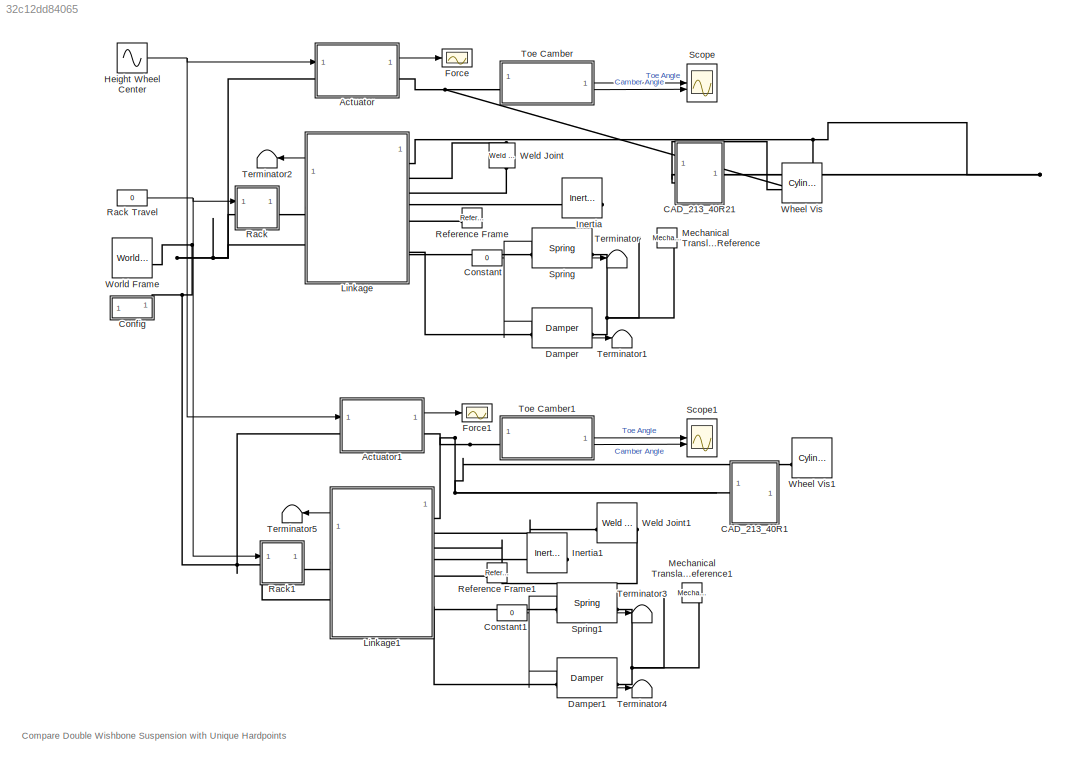
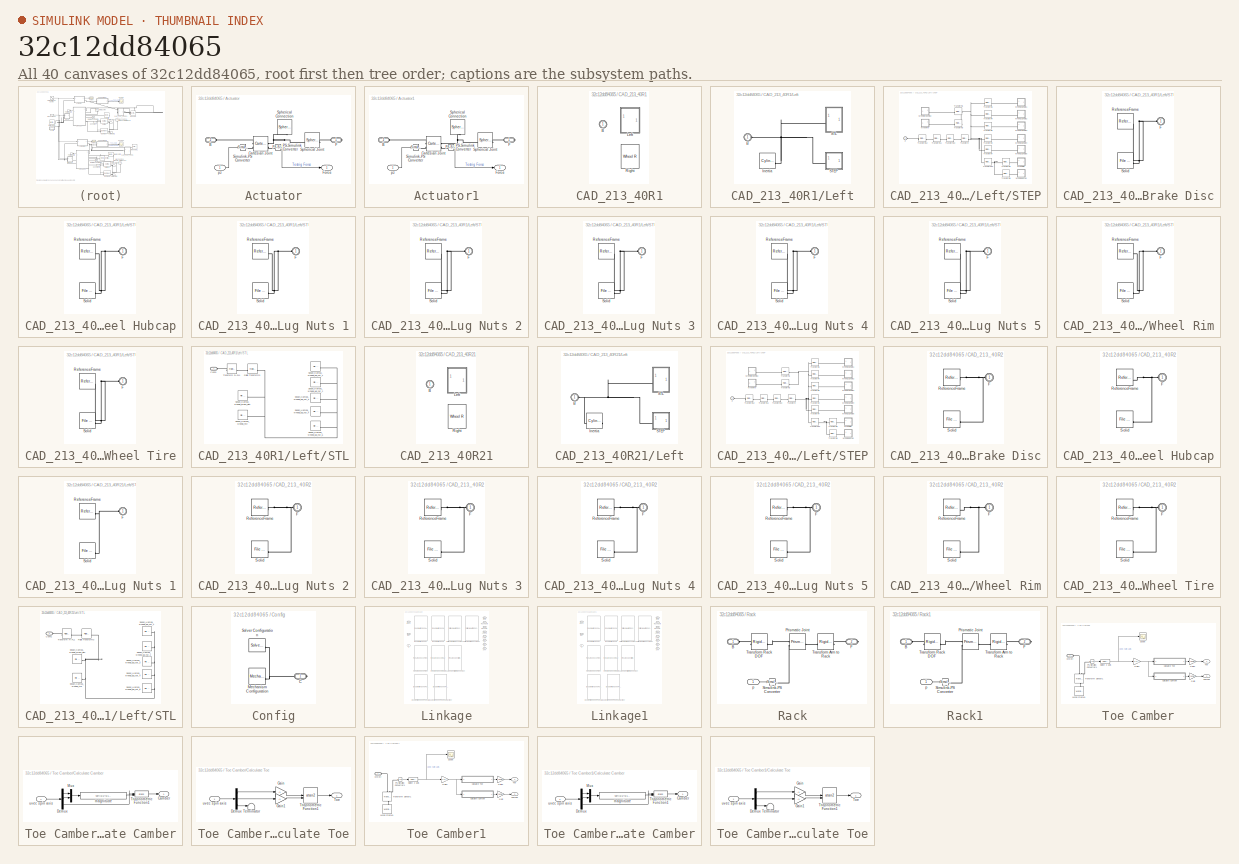
[diagram: thumbnail index - all 40 canvases of the model, root first then tree order]
MODEL slx_32c12dd84065
KIND model
CONFIG AbsTol = 1e-3
CONFIG EnableMultiTasking = on
CONFIG PostLoadFcn = testrig_quarter_car_compare_hps
CONFIG SolverName = ode23t
CONFIG StopTime = 7
BLOCK [SubSystem] Actuator
BLOCK [PMIOPort] Actuator/B
  Port = 2
  Side = Left
BLOCK [Reference] Actuator/Cartesian Joint  REF=sm_lib/Joints/Cartesian
Joint
  SourceBlock = sm_lib/Joints/Cartesian\nJoint
  SourceType = Cartesian\nJoint
BLOCK [PMIOPort] Actuator/F
  Side = Right
BLOCK [Outport] Actuator/Force
  VectorParamsAs1DForOutWhenUnconnected = off
BLOCK [Reference] Actuator/PS-Simulink Converter  REF=nesl_utility/PS-Simulink
Converter
  SourceBlock = nesl_utility/PS-Simulink\nConverter
  SourceType = PS-Simulink\nConverter
BLOCK [Reference] Actuator/Simulink-PS Converter  REF=nesl_utility/Simulink-PS
Converter
  SourceBlock = nesl_utility/Simulink-PS\nConverter
  SourceType = Simulink-PS\nConverter
BLOCK [Reference] Actuator/Spherical Connection  REF=sm_lib/Body Elements/Spherical Solid
  NameLocation = left
  SourceBlock = sm_lib/Body Elements/Spherical Solid
  SourceType = Spherical Solid
BLOCK [Reference] Actuator/Spherical Joint  REF=sm_lib/Joints/Spherical
Joint
  SourceBlock = sm_lib/Joints/Spherical\nJoint
  SourceType = Spherical\nJoint
BLOCK [Inport] Actuator/pz
BLOCK [SubSystem] Actuator1
BLOCK [PMIOPort] Actuator1/B
  Port = 2
  Side = Left
BLOCK [Reference] Actuator1/Cartesian Joint  REF=sm_lib/Joints/Cartesian
Joint
  SourceBlock = sm_lib/Joints/Cartesian\nJoint
  SourceType = Cartesian\nJoint
BLOCK [PMIOPort] Actuator1/F
  Side = Right
BLOCK [Outport] Actuator1/Force
  VectorParamsAs1DForOutWhenUnconnected = off
BLOCK [Reference] Actuator1/PS-Simulink Converter  REF=nesl_utility/PS-Simulink
Converter
  SourceBlock = nesl_utility/PS-Simulink\nConverter
  SourceType = PS-Simulink\nConverter
BLOCK [Reference] Actuator1/Simulink-PS Converter  REF=nesl_utility/Simulink-PS
Converter
  SourceBlock = nesl_utility/Simulink-PS\nConverter
  SourceType = Simulink-PS\nConverter
BLOCK [Reference] Actuator1/Spherical Connection  REF=sm_lib/Body Elements/Spherical Solid
  NameLocation = left
  SourceBlock = sm_lib/Body Elements/Spherical Solid
  SourceType = Spherical Solid
BLOCK [Reference] Actuator1/Spherical Joint  REF=sm_lib/Joints/Spherical
Joint
  SourceBlock = sm_lib/Joints/Spherical\nJoint
  SourceType = Spherical\nJoint
BLOCK [Inport] Actuator1/pz
BLOCK [SubSystem] CAD_213_40R1
  AttributesFormatString = %<LabelModeActiveChoice>
  LabelModeActiveChoice = Left
  Variant = on
  VariantControl = CAD_213_40R21
  VariantControlMode = label
BLOCK [PMIOPort] CAD_213_40R1/B
  Side = Left
BLOCK [SubSystem] CAD_213_40R1/Left
  VariantControl = Left
BLOCK [PMIOPort] CAD_213_40R1/Left/B
  Side = Left
BLOCK [Reference] CAD_213_40R1/Left/Inertia  REF=sm_lib/Body Elements/Cylindrical Solid
  SourceBlock = sm_lib/Body Elements/Cylindrical Solid
  SourceType = Cylindrical Solid
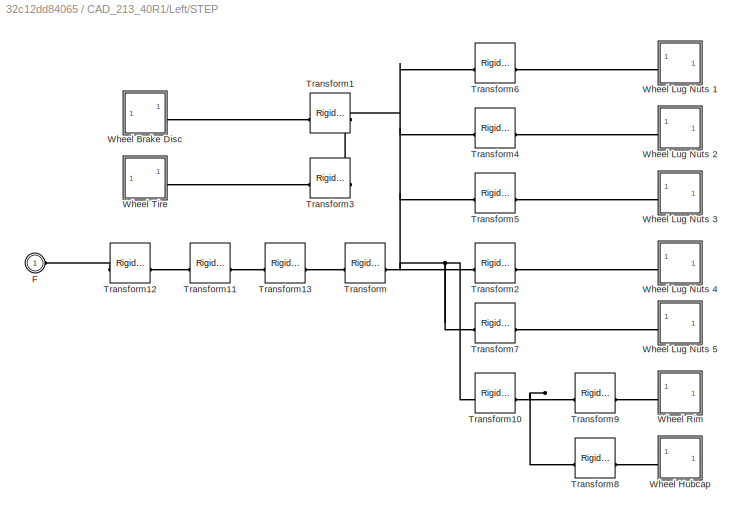
BLOCK [SubSystem] CAD_213_40R1/Left/STEP
BLOCK [PMIOPort] CAD_213_40R1/Left/STEP/F
  Side = Left
BLOCK [Reference] CAD_213_40R1/Left/STEP/Transform  REF=sm_lib/Frames and
Transforms/Rigid
Transform
  SourceBlock = sm_lib/Frames and\nTransforms/Rigid\nTransform
  SourceType = Rigid\nTransform
BLOCK [Reference] CAD_213_40R1/Left/STEP/Transform1  REF=sm_lib/Frames and
Transforms/Rigid
Transform
  Commented = on
  SourceBlock = sm_lib/Frames and\nTransforms/Rigid\nTransform
  SourceType = Rigid\nTransform
BLOCK [Reference] CAD_213_40R1/Left/STEP/Transform10  REF=sm_lib/Frames and
Transforms/Rigid
Transform
  SourceBlock = sm_lib/Frames and\nTransforms/Rigid\nTransform
  SourceType = Rigid\nTransform
BLOCK [Reference] CAD_213_40R1/Left/STEP/Transform11  REF=sm_lib/Frames and
Transforms/Rigid
Transform
  SourceBlock = sm_lib/Frames and\nTransforms/Rigid\nTransform
  SourceType = Rigid\nTransform
BLOCK [Reference] CAD_213_40R1/Left/STEP/Transform12  REF=sm_lib/Frames and
Transforms/Rigid
Transform
  SourceBlock = sm_lib/Frames and\nTransforms/Rigid\nTransform
  SourceType = Rigid\nTransform
BLOCK [Reference] CAD_213_40R1/Left/STEP/Transform13  REF=sm_lib/Frames and
Transforms/Rigid
Transform
  SourceBlock = sm_lib/Frames and\nTransforms/Rigid\nTransform
  SourceType = Rigid\nTransform
BLOCK [Reference] CAD_213_40R1/Left/STEP/Transform2  REF=sm_lib/Frames and
Transforms/Rigid
Transform
  SourceBlock = sm_lib/Frames and\nTransforms/Rigid\nTransform
  SourceType = Rigid\nTransform
BLOCK [Reference] CAD_213_40R1/Left/STEP/Transform3  REF=sm_lib/Frames and
Transforms/Rigid
Transform
  Commented = on
  SourceBlock = sm_lib/Frames and\nTransforms/Rigid\nTransform
  SourceType = Rigid\nTransform
BLOCK [Reference] CAD_213_40R1/Left/STEP/Transform4  REF=sm_lib/Frames and
Transforms/Rigid
Transform
  SourceBlock = sm_lib/Frames and\nTransforms/Rigid\nTransform
  SourceType = Rigid\nTransform
BLOCK [Reference] CAD_213_40R1/Left/STEP/Transform5  REF=sm_lib/Frames and
Transforms/Rigid
Transform
  SourceBlock = sm_lib/Frames and\nTransforms/Rigid\nTransform
  SourceType = Rigid\nTransform
BLOCK [Reference] CAD_213_40R1/Left/STEP/Transform6  REF=sm_lib/Frames and
Transforms/Rigid
Transform
  SourceBlock = sm_lib/Frames and\nTransforms/Rigid\nTransform
  SourceType = Rigid\nTransform
BLOCK [Reference] CAD_213_40R1/Left/STEP/Transform7  REF=sm_lib/Frames and
Transforms/Rigid
Transform
  SourceBlock = sm_lib/Frames and\nTransforms/Rigid\nTransform
  SourceType = Rigid\nTransform
BLOCK [Reference] CAD_213_40R1/Left/STEP/Transform8  REF=sm_lib/Frames and
Transforms/Rigid
Transform
  SourceBlock = sm_lib/Frames and\nTransforms/Rigid\nTransform
  SourceType = Rigid\nTransform
BLOCK [Reference] CAD_213_40R1/Left/STEP/Transform9  REF=sm_lib/Frames and
Transforms/Rigid
Transform
  SourceBlock = sm_lib/Frames and\nTransforms/Rigid\nTransform
  SourceType = Rigid\nTransform
BLOCK [SubSystem] CAD_213_40R1/Left/STEP/Wheel Brake Disc
  Commented = on
BLOCK [PMIOPort] CAD_213_40R1/Left/STEP/Wheel Brake Disc/F
  Side = Left
BLOCK [Reference] CAD_213_40R1/Left/STEP/Wheel Brake Disc/ReferenceFrame  REF=sm_lib/Frames and
Transforms/Reference
Frame
  SourceBlock = sm_lib/Frames and\nTransforms/Reference\nFrame
  SourceType = Reference\nFrame
BLOCK [Reference] CAD_213_40R1/Left/STEP/Wheel Brake Disc/Solid  REF=sm_lib/Body Elements/File Solid
  SourceBlock = sm_lib/Body Elements/File Solid
  SourceType = File Solid
BLOCK [SubSystem] CAD_213_40R1/Left/STEP/Wheel Hubcap
BLOCK [PMIOPort] CAD_213_40R1/Left/STEP/Wheel Hubcap/F
  Side = Left
BLOCK [Reference] CAD_213_40R1/Left/STEP/Wheel Hubcap/ReferenceFrame  REF=sm_lib/Frames and
Transforms/Reference
Frame
  SourceBlock = sm_lib/Frames and\nTransforms/Reference\nFrame
  SourceType = Reference\nFrame
BLOCK [Reference] CAD_213_40R1/Left/STEP/Wheel Hubcap/Solid  REF=sm_lib/Body Elements/File Solid
  SourceBlock = sm_lib/Body Elements/File Solid
  SourceType = File Solid
BLOCK [SubSystem] CAD_213_40R1/Left/STEP/Wheel Lug Nuts 1
BLOCK [PMIOPort] CAD_213_40R1/Left/STEP/Wheel Lug Nuts 1/F
  Side = Left
BLOCK [Reference] CAD_213_40R1/Left/STEP/Wheel Lug Nuts 1/ReferenceFrame  REF=sm_lib/Frames and
Transforms/Reference
Frame
  SourceBlock = sm_lib/Frames and\nTransforms/Reference\nFrame
  SourceType = Reference\nFrame
BLOCK [Reference] CAD_213_40R1/Left/STEP/Wheel Lug Nuts 1/Solid  REF=sm_lib/Body Elements/File Solid
  SourceBlock = sm_lib/Body Elements/File Solid
  SourceType = File Solid
BLOCK [SubSystem] CAD_213_40R1/Left/STEP/Wheel Lug Nuts 2
BLOCK [PMIOPort] CAD_213_40R1/Left/STEP/Wheel Lug Nuts 2/F
  Side = Left
BLOCK [Reference] CAD_213_40R1/Left/STEP/Wheel Lug Nuts 2/ReferenceFrame  REF=sm_lib/Frames and
Transforms/Reference
Frame
  SourceBlock = sm_lib/Frames and\nTransforms/Reference\nFrame
  SourceType = Reference\nFrame
BLOCK [Reference] CAD_213_40R1/Left/STEP/Wheel Lug Nuts 2/Solid  REF=sm_lib/Body Elements/File Solid
  SourceBlock = sm_lib/Body Elements/File Solid
  SourceType = File Solid
BLOCK [SubSystem] CAD_213_40R1/Left/STEP/Wheel Lug Nuts 3
BLOCK [PMIOPort] CAD_213_40R1/Left/STEP/Wheel Lug Nuts 3/F
  Side = Left
BLOCK [Reference] CAD_213_40R1/Left/STEP/Wheel Lug Nuts 3/ReferenceFrame  REF=sm_lib/Frames and
Transforms/Reference
Frame
  SourceBlock = sm_lib/Frames and\nTransforms/Reference\nFrame
  SourceType = Reference\nFrame
BLOCK [Reference] CAD_213_40R1/Left/STEP/Wheel Lug Nuts 3/Solid  REF=sm_lib/Body Elements/File Solid
  SourceBlock = sm_lib/Body Elements/File Solid
  SourceType = File Solid
BLOCK [SubSystem] CAD_213_40R1/Left/STEP/Wheel Lug Nuts 4
BLOCK [PMIOPort] CAD_213_40R1/Left/STEP/Wheel Lug Nuts 4/F
  Side = Left
BLOCK [Reference] CAD_213_40R1/Left/STEP/Wheel Lug Nuts 4/ReferenceFrame  REF=sm_lib/Frames and
Transforms/Reference
Frame
  SourceBlock = sm_lib/Frames and\nTransforms/Reference\nFrame
  SourceType = Reference\nFrame
BLOCK [Reference] CAD_213_40R1/Left/STEP/Wheel Lug Nuts 4/Solid  REF=sm_lib/Body Elements/File Solid
  SourceBlock = sm_lib/Body Elements/File Solid
  SourceType = File Solid
BLOCK [SubSystem] CAD_213_40R1/Left/STEP/Wheel Lug Nuts 5
BLOCK [PMIOPort] CAD_213_40R1/Left/STEP/Wheel Lug Nuts 5/F
  Side = Left
BLOCK [Reference] CAD_213_40R1/Left/STEP/Wheel Lug Nuts 5/ReferenceFrame  REF=sm_lib/Frames and
Transforms/Reference
Frame
  SourceBlock = sm_lib/Frames and\nTransforms/Reference\nFrame
  SourceType = Reference\nFrame
BLOCK [Reference] CAD_213_40R1/Left/STEP/Wheel Lug Nuts 5/Solid  REF=sm_lib/Body Elements/File Solid
  SourceBlock = sm_lib/Body Elements/File Solid
  SourceType = File Solid
BLOCK [SubSystem] CAD_213_40R1/Left/STEP/Wheel Rim
BLOCK [PMIOPort] CAD_213_40R1/Left/STEP/Wheel Rim/F
  Side = Left
BLOCK [Reference] CAD_213_40R1/Left/STEP/Wheel Rim/ReferenceFrame  REF=sm_lib/Frames and
Transforms/Reference
Frame
  SourceBlock = sm_lib/Frames and\nTransforms/Reference\nFrame
  SourceType = Reference\nFrame
BLOCK [Reference] CAD_213_40R1/Left/STEP/Wheel Rim/Solid  REF=sm_lib/Body Elements/File Solid
  SourceBlock = sm_lib/Body Elements/File Solid
  SourceType = File Solid
BLOCK [SubSystem] CAD_213_40R1/Left/STEP/Wheel Tire
  Commented = on
BLOCK [PMIOPort] CAD_213_40R1/Left/STEP/Wheel Tire/F
  Side = Left
BLOCK [Reference] CAD_213_40R1/Left/STEP/Wheel Tire/ReferenceFrame  REF=sm_lib/Frames and
Transforms/Reference
Frame
  SourceBlock = sm_lib/Frames and\nTransforms/Reference\nFrame
  SourceType = Reference\nFrame
BLOCK [Reference] CAD_213_40R1/Left/STEP/Wheel Tire/Solid  REF=sm_lib/Body Elements/File Solid
  SourceBlock = sm_lib/Body Elements/File Solid
  SourceType = File Solid
BLOCK [SubSystem] CAD_213_40R1/Left/STL
BLOCK [PMIOPort] CAD_213_40R1/Left/STL/Conn1
  Side = Left
BLOCK [Reference] CAD_213_40R1/Left/STL/Rigid Transform3  REF=sm_lib/Frames and
Transforms/Rigid
Transform
  SourceBlock = sm_lib/Frames and\nTransforms/Rigid\nTransform
  SourceType = Rigid\nTransform
BLOCK [Reference] CAD_213_40R1/Left/STL/Sedan_Hamba_wheel3_brake_disc  REF=sm_lib/Body Elements/File Solid
  SourceBlock = sm_lib/Body Elements/File Solid
  SourceType = File Solid
BLOCK [Reference] CAD_213_40R1/Left/STL/Sedan_Hamba_wheel3_lug_nut_1  REF=sm_lib/Body Elements/File Solid
  Commented = on
  SourceBlock = sm_lib/Body Elements/File Solid
  SourceType = File Solid
BLOCK [Reference] CAD_213_40R1/Left/STL/Sedan_Hamba_wheel3_lug_nut_2  REF=sm_lib/Body Elements/File Solid
  Commented = on
  SourceBlock = sm_lib/Body Elements/File Solid
  SourceType = File Solid
BLOCK [Reference] CAD_213_40R1/Left/STL/Sedan_Hamba_wheel3_lug_nut_3  REF=sm_lib/Body Elements/File Solid
  Commented = on
  SourceBlock = sm_lib/Body Elements/File Solid
  SourceType = File Solid
BLOCK [Reference] CAD_213_40R1/Left/STL/Sedan_Hamba_wheel3_lug_nut_4  REF=sm_lib/Body Elements/File Solid
  Commented = on
  SourceBlock = sm_lib/Body Elements/File Solid
  SourceType = File Solid
BLOCK [Reference] CAD_213_40R1/Left/STL/Sedan_Hamba_wheel3_lug_nut_5  REF=sm_lib/Body Elements/File Solid
  Commented = on
  SourceBlock = sm_lib/Body Elements/File Solid
  SourceType = File Solid
BLOCK [Reference] CAD_213_40R1/Left/STL/Sedan_Hamba_wheel3_tire  REF=sm_lib/Body Elements/File Solid
  SourceBlock = sm_lib/Body Elements/File Solid
  SourceType = File Solid
BLOCK [Reference] CAD_213_40R1/Left/STL/Transform FA FL1  REF=sm_lib/Frames and
Transforms/Rigid
Transform
  SourceBlock = sm_lib/Frames and\nTransforms/Rigid\nTransform
  SourceType = Rigid\nTransform
BLOCK [Reference] CAD_213_40R1/Right  REF=Sedan_Hamba_Parts/Wheel R
  SourceBlock = Sedan_Hamba_Parts/Wheel R
BLOCK [SubSystem] CAD_213_40R21
  AttributesFormatString = %<LabelModeActiveChoice>
  LabelModeActiveChoice = Left
  Variant = on
  VariantControl = CAD_213_40R21
  VariantControlMode = label
BLOCK [PMIOPort] CAD_213_40R21/B
  Side = Left
BLOCK [SubSystem] CAD_213_40R21/Left
  VariantControl = Left
BLOCK [PMIOPort] CAD_213_40R21/Left/B
  Side = Left
BLOCK [Reference] CAD_213_40R21/Left/Inertia  REF=sm_lib/Body Elements/Cylindrical Solid
  SourceBlock = sm_lib/Body Elements/Cylindrical Solid
  SourceType = Cylindrical Solid
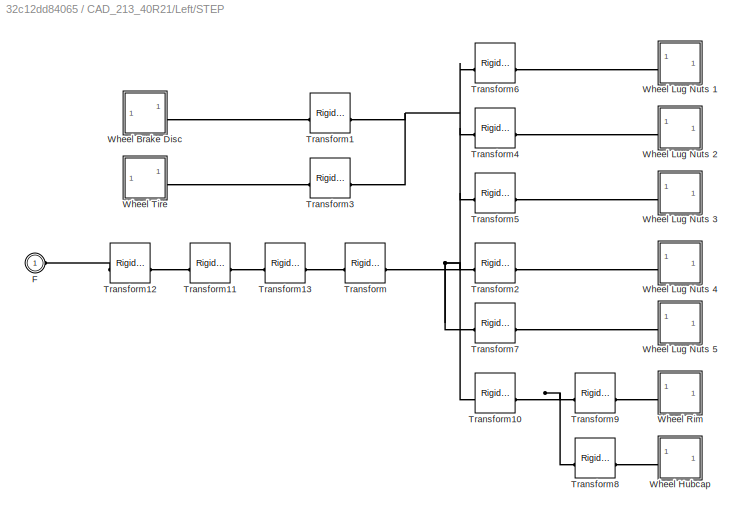
BLOCK [SubSystem] CAD_213_40R21/Left/STEP
BLOCK [PMIOPort] CAD_213_40R21/Left/STEP/F
  Side = Left
BLOCK [Reference] CAD_213_40R21/Left/STEP/Transform  REF=sm_lib/Frames and
Transforms/Rigid
Transform
  SourceBlock = sm_lib/Frames and\nTransforms/Rigid\nTransform
  SourceType = Rigid\nTransform
BLOCK [Reference] CAD_213_40R21/Left/STEP/Transform1  REF=sm_lib/Frames and
Transforms/Rigid
Transform
  Commented = on
  SourceBlock = sm_lib/Frames and\nTransforms/Rigid\nTransform
  SourceType = Rigid\nTransform
BLOCK [Reference] CAD_213_40R21/Left/STEP/Transform10  REF=sm_lib/Frames and
Transforms/Rigid
Transform
  SourceBlock = sm_lib/Frames and\nTransforms/Rigid\nTransform
  SourceType = Rigid\nTransform
BLOCK [Reference] CAD_213_40R21/Left/STEP/Transform11  REF=sm_lib/Frames and
Transforms/Rigid
Transform
  SourceBlock = sm_lib/Frames and\nTransforms/Rigid\nTransform
  SourceType = Rigid\nTransform
BLOCK [Reference] CAD_213_40R21/Left/STEP/Transform12  REF=sm_lib/Frames and
Transforms/Rigid
Transform
  SourceBlock = sm_lib/Frames and\nTransforms/Rigid\nTransform
  SourceType = Rigid\nTransform
BLOCK [Reference] CAD_213_40R21/Left/STEP/Transform13  REF=sm_lib/Frames and
Transforms/Rigid
Transform
  SourceBlock = sm_lib/Frames and\nTransforms/Rigid\nTransform
  SourceType = Rigid\nTransform
BLOCK [Reference] CAD_213_40R21/Left/STEP/Transform2  REF=sm_lib/Frames and
Transforms/Rigid
Transform
  SourceBlock = sm_lib/Frames and\nTransforms/Rigid\nTransform
  SourceType = Rigid\nTransform
BLOCK [Reference] CAD_213_40R21/Left/STEP/Transform3  REF=sm_lib/Frames and
Transforms/Rigid
Transform
  Commented = on
  SourceBlock = sm_lib/Frames and\nTransforms/Rigid\nTransform
  SourceType = Rigid\nTransform
BLOCK [Reference] CAD_213_40R21/Left/STEP/Transform4  REF=sm_lib/Frames and
Transforms/Rigid
Transform
  SourceBlock = sm_lib/Frames and\nTransforms/Rigid\nTransform
  SourceType = Rigid\nTransform
BLOCK [Reference] CAD_213_40R21/Left/STEP/Transform5  REF=sm_lib/Frames and
Transforms/Rigid
Transform
  SourceBlock = sm_lib/Frames and\nTransforms/Rigid\nTransform
  SourceType = Rigid\nTransform
BLOCK [Reference] CAD_213_40R21/Left/STEP/Transform6  REF=sm_lib/Frames and
Transforms/Rigid
Transform
  SourceBlock = sm_lib/Frames and\nTransforms/Rigid\nTransform
  SourceType = Rigid\nTransform
BLOCK [Reference] CAD_213_40R21/Left/STEP/Transform7  REF=sm_lib/Frames and
Transforms/Rigid
Transform
  SourceBlock = sm_lib/Frames and\nTransforms/Rigid\nTransform
  SourceType = Rigid\nTransform
BLOCK [Reference] CAD_213_40R21/Left/STEP/Transform8  REF=sm_lib/Frames and
Transforms/Rigid
Transform
  SourceBlock = sm_lib/Frames and\nTransforms/Rigid\nTransform
  SourceType = Rigid\nTransform
BLOCK [Reference] CAD_213_40R21/Left/STEP/Transform9  REF=sm_lib/Frames and
Transforms/Rigid
Transform
  SourceBlock = sm_lib/Frames and\nTransforms/Rigid\nTransform
  SourceType = Rigid\nTransform
BLOCK [SubSystem] CAD_213_40R21/Left/STEP/Wheel Brake Disc
  Commented = on
BLOCK [PMIOPort] CAD_213_40R21/Left/STEP/Wheel Brake Disc/F
  Side = Left
BLOCK [Reference] CAD_213_40R21/Left/STEP/Wheel Brake Disc/ReferenceFrame  REF=sm_lib/Frames and
Transforms/Reference
Frame
  SourceBlock = sm_lib/Frames and\nTransforms/Reference\nFrame
  SourceType = Reference\nFrame
BLOCK [Reference] CAD_213_40R21/Left/STEP/Wheel Brake Disc/Solid  REF=sm_lib/Body Elements/File Solid
  SourceBlock = sm_lib/Body Elements/File Solid
  SourceType = File Solid
BLOCK [SubSystem] CAD_213_40R21/Left/STEP/Wheel Hubcap
BLOCK [PMIOPort] CAD_213_40R21/Left/STEP/Wheel Hubcap/F
  Side = Left
BLOCK [Reference] CAD_213_40R21/Left/STEP/Wheel Hubcap/ReferenceFrame  REF=sm_lib/Frames and
Transforms/Reference
Frame
  SourceBlock = sm_lib/Frames and\nTransforms/Reference\nFrame
  SourceType = Reference\nFrame
BLOCK [Reference] CAD_213_40R21/Left/STEP/Wheel Hubcap/Solid  REF=sm_lib/Body Elements/File Solid
  SourceBlock = sm_lib/Body Elements/File Solid
  SourceType = File Solid
BLOCK [SubSystem] CAD_213_40R21/Left/STEP/Wheel Lug Nuts 1
BLOCK [PMIOPort] CAD_213_40R21/Left/STEP/Wheel Lug Nuts 1/F
  Side = Left
BLOCK [Reference] CAD_213_40R21/Left/STEP/Wheel Lug Nuts 1/ReferenceFrame  REF=sm_lib/Frames and
Transforms/Reference
Frame
  SourceBlock = sm_lib/Frames and\nTransforms/Reference\nFrame
  SourceType = Reference\nFrame
BLOCK [Reference] CAD_213_40R21/Left/STEP/Wheel Lug Nuts 1/Solid  REF=sm_lib/Body Elements/File Solid
  SourceBlock = sm_lib/Body Elements/File Solid
  SourceType = File Solid
BLOCK [SubSystem] CAD_213_40R21/Left/STEP/Wheel Lug Nuts 2
BLOCK [PMIOPort] CAD_213_40R21/Left/STEP/Wheel Lug Nuts 2/F
  Side = Left
BLOCK [Reference] CAD_213_40R21/Left/STEP/Wheel Lug Nuts 2/ReferenceFrame  REF=sm_lib/Frames and
Transforms/Reference
Frame
  SourceBlock = sm_lib/Frames and\nTransforms/Reference\nFrame
  SourceType = Reference\nFrame
BLOCK [Reference] CAD_213_40R21/Left/STEP/Wheel Lug Nuts 2/Solid  REF=sm_lib/Body Elements/File Solid
  SourceBlock = sm_lib/Body Elements/File Solid
  SourceType = File Solid
BLOCK [SubSystem] CAD_213_40R21/Left/STEP/Wheel Lug Nuts 3
BLOCK [PMIOPort] CAD_213_40R21/Left/STEP/Wheel Lug Nuts 3/F
  Side = Left
BLOCK [Reference] CAD_213_40R21/Left/STEP/Wheel Lug Nuts 3/ReferenceFrame  REF=sm_lib/Frames and
Transforms/Reference
Frame
  SourceBlock = sm_lib/Frames and\nTransforms/Reference\nFrame
  SourceType = Reference\nFrame
BLOCK [Reference] CAD_213_40R21/Left/STEP/Wheel Lug Nuts 3/Solid  REF=sm_lib/Body Elements/File Solid
  SourceBlock = sm_lib/Body Elements/File Solid
  SourceType = File Solid
BLOCK [SubSystem] CAD_213_40R21/Left/STEP/Wheel Lug Nuts 4
BLOCK [PMIOPort] CAD_213_40R21/Left/STEP/Wheel Lug Nuts 4/F
  Side = Left
BLOCK [Reference] CAD_213_40R21/Left/STEP/Wheel Lug Nuts 4/ReferenceFrame  REF=sm_lib/Frames and
Transforms/Reference
Frame
  SourceBlock = sm_lib/Frames and\nTransforms/Reference\nFrame
  SourceType = Reference\nFrame
BLOCK [Reference] CAD_213_40R21/Left/STEP/Wheel Lug Nuts 4/Solid  REF=sm_lib/Body Elements/File Solid
  SourceBlock = sm_lib/Body Elements/File Solid
  SourceType = File Solid
BLOCK [SubSystem] CAD_213_40R21/Left/STEP/Wheel Lug Nuts 5
BLOCK [PMIOPort] CAD_213_40R21/Left/STEP/Wheel Lug Nuts 5/F
  Side = Left
BLOCK [Reference] CAD_213_40R21/Left/STEP/Wheel Lug Nuts 5/ReferenceFrame  REF=sm_lib/Frames and
Transforms/Reference
Frame
  SourceBlock = sm_lib/Frames and\nTransforms/Reference\nFrame
  SourceType = Reference\nFrame
BLOCK [Reference] CAD_213_40R21/Left/STEP/Wheel Lug Nuts 5/Solid  REF=sm_lib/Body Elements/File Solid
  SourceBlock = sm_lib/Body Elements/File Solid
  SourceType = File Solid
BLOCK [SubSystem] CAD_213_40R21/Left/STEP/Wheel Rim
BLOCK [PMIOPort] CAD_213_40R21/Left/STEP/Wheel Rim/F
  Side = Left
BLOCK [Reference] CAD_213_40R21/Left/STEP/Wheel Rim/ReferenceFrame  REF=sm_lib/Frames and
Transforms/Reference
Frame
  SourceBlock = sm_lib/Frames and\nTransforms/Reference\nFrame
  SourceType = Reference\nFrame
BLOCK [Reference] CAD_213_40R21/Left/STEP/Wheel Rim/Solid  REF=sm_lib/Body Elements/File Solid
  SourceBlock = sm_lib/Body Elements/File Solid
  SourceType = File Solid
BLOCK [SubSystem] CAD_213_40R21/Left/STEP/Wheel Tire
  Commented = on
BLOCK [PMIOPort] CAD_213_40R21/Left/STEP/Wheel Tire/F
  Side = Left
BLOCK [Reference] CAD_213_40R21/Left/STEP/Wheel Tire/ReferenceFrame  REF=sm_lib/Frames and
Transforms/Reference
Frame
  SourceBlock = sm_lib/Frames and\nTransforms/Reference\nFrame
  SourceType = Reference\nFrame
BLOCK [Reference] CAD_213_40R21/Left/STEP/Wheel Tire/Solid  REF=sm_lib/Body Elements/File Solid
  SourceBlock = sm_lib/Body Elements/File Solid
  SourceType = File Solid
BLOCK [SubSystem] CAD_213_40R21/Left/STL
BLOCK [PMIOPort] CAD_213_40R21/Left/STL/Conn1
  Side = Left
BLOCK [Reference] CAD_213_40R21/Left/STL/Rigid Transform3  REF=sm_lib/Frames and
Transforms/Rigid
Transform
  SourceBlock = sm_lib/Frames and\nTransforms/Rigid\nTransform
  SourceType = Rigid\nTransform
BLOCK [Reference] CAD_213_40R21/Left/STL/Sedan_Hamba_wheel3_brake_disc  REF=sm_lib/Body Elements/File Solid
  SourceBlock = sm_lib/Body Elements/File Solid
  SourceType = File Solid
BLOCK [Reference] CAD_213_40R21/Left/STL/Sedan_Hamba_wheel3_lug_nut_1  REF=sm_lib/Body Elements/File Solid
  Commented = on
  SourceBlock = sm_lib/Body Elements/File Solid
  SourceType = File Solid
BLOCK [Reference] CAD_213_40R21/Left/STL/Sedan_Hamba_wheel3_lug_nut_2  REF=sm_lib/Body Elements/File Solid
  Commented = on
  SourceBlock = sm_lib/Body Elements/File Solid
  SourceType = File Solid
BLOCK [Reference] CAD_213_40R21/Left/STL/Sedan_Hamba_wheel3_lug_nut_3  REF=sm_lib/Body Elements/File Solid
  Commented = on
  SourceBlock = sm_lib/Body Elements/File Solid
  SourceType = File Solid
BLOCK [Reference] CAD_213_40R21/Left/STL/Sedan_Hamba_wheel3_lug_nut_4  REF=sm_lib/Body Elements/File Solid
  Commented = on
  SourceBlock = sm_lib/Body Elements/File Solid
  SourceType = File Solid
BLOCK [Reference] CAD_213_40R21/Left/STL/Sedan_Hamba_wheel3_lug_nut_5  REF=sm_lib/Body Elements/File Solid
  Commented = on
  SourceBlock = sm_lib/Body Elements/File Solid
  SourceType = File Solid
BLOCK [Reference] CAD_213_40R21/Left/STL/Sedan_Hamba_wheel3_tire  REF=sm_lib/Body Elements/File Solid
  SourceBlock = sm_lib/Body Elements/File Solid
  SourceType = File Solid
BLOCK [Reference] CAD_213_40R21/Left/STL/Transform FA FL1  REF=sm_lib/Frames and
Transforms/Rigid
Transform
  SourceBlock = sm_lib/Frames and\nTransforms/Rigid\nTransform
  SourceType = Rigid\nTransform
BLOCK [Reference] CAD_213_40R21/Right  REF=Sedan_Hamba_Parts/Wheel R
  SourceBlock = Sedan_Hamba_Parts/Wheel R
BLOCK [SubSystem] Config
BLOCK [PMIOPort] Config/C
  Side = Right
BLOCK [Reference] Config/Mechanism Configuration  REF=sm_lib/Utilities/Mechanism
Configuration
  SourceBlock = sm_lib/Utilities/Mechanism\nConfiguration
  SourceType = Mechanism\nConfiguration
BLOCK [Reference] Config/Solver Configuration  REF=nesl_utility/Solver
Configuration
  SourceBlock = nesl_utility/Solver\nConfiguration
  SourceType = Solver\nConfiguration
BLOCK [Constant] Constant
  Value = 0
BLOCK [Constant] Constant1
  Value = 0
BLOCK [Reference] Damper  REF=Damper_Basics/Damper
  AttributesFormatString = %<ActiveVariant>
  SourceBlock = Damper_Basics/Damper
  SourceType = Variants for Damper
BLOCK [Reference] Damper1  REF=Damper_Basics/Damper
  AttributesFormatString = %<ActiveVariant>
  SourceBlock = Damper_Basics/Damper
  SourceType = Variants for Damper
BLOCK [Scope] Force
  ActiveDisplayYMaximum = 16995.53068
  ActiveDisplayYMinimum = 3778.08359
  DataLoggingVariableName = ScopeData1
  Floating = off
  GraphicalSettings = {"GraphicalSettings":{"LegacySettings":true,"Style":{"Style":{"AxesColor":"[0 0 0]","ChannelNames":[""],"ColorOrder":"[1 1 0.0666666666666667;0.0745098039215686 0.623529411764706 1;1 0.411764705882353 0.16078431372549;0.392156862745098 0.831372549019608 0.0745098039215686;0.717647058823529 0.274509803921569 1;0.0588235294117647 1 1;1 0.0745098039215686 0.650980392156863]","CurrentConfiguration":"e...<+343ch>  <repeated x4 — deduplicated; at blocks: Force, Force1, Scope>
  MultipleDisplayCache = [{"MaxYLimMag":16995.53068,"MaxYLimReal":16995.53068,"MinYLimMag":3778.08359,"MinYLimReal":3778.08359,"PlotAsMagnitudePhase":false,"ShowGrid":true,"ShowLegend":false,"Title":"%<SignalLabel>","YLabel":""}]
  NameLocation = top
  NumInputPorts = 1
  WasSavedAsWebScope = on
  WindowPosition = [816 358 560 420]
BLOCK [Scope] Force1
  ActiveDisplayYMaximum = 16995.53068
  ActiveDisplayYMinimum = 3778.08359
  DataLoggingVariableName = ScopeData1
  Floating = off
  MultipleDisplayCache = [{"MaxYLimMag":16995.53068,"MaxYLimReal":16995.53068,"MinYLimMag":3778.08359,"MinYLimReal":3778.08359,"PlotAsMagnitudePhase":false,"ShowGrid":true,"ShowLegend":false,"Title":"%<SignalLabel>","YLabel":""}]
  NameLocation = top
  NumInputPorts = 1
  WasSavedAsWebScope = on
  WindowPosition = [816 358 560 420]
BLOCK [Sin] Height Wheel Center
  Amplitude = 0.12
  Bias = Vehicle.Chassis.SuspA1.Linkage.Upright.sWheelCentre.Value(3)
  Frequency = 10/(2*pi)
  SampleTime = 0
BLOCK [Reference] Inertia  REF=fl_lib/Mechanical/Rotational Elements/Inertia
  NameLocation = top
  SourceBlock = fl_lib/Mechanical/Rotational Elements/Inertia
  SourceType = Inertia
BLOCK [Reference] Inertia1  REF=fl_lib/Mechanical/Rotational Elements/Inertia
  NameLocation = top
  SourceBlock = fl_lib/Mechanical/Rotational Elements/Inertia
  SourceType = Inertia
BLOCK [SubSystem] Linkage
  AttributesFormatString = %<ActiveVariant>
  LabelModeActiveChoice = DoubleWishbone
  Variant = on
  VariantControl = Variant1
  VariantControlMode = label
BLOCK [PMIOPort] Linkage/Axle1D
  Port = 6
  Side = Left
BLOCK [PMIOPort] Linkage/AxleIn
  Port = 7
  Side = Left
BLOCK [PMIOPort] Linkage/D
  Port = 9
  Side = Left
BLOCK [Reference] Linkage/DoubleWishbone  REF=Linkage_DW_B/DoubleWishbone
  SourceBlock = Linkage_DW_B/DoubleWishbone
  SourceType = Double-Wishbone Suspension
BLOCK [Reference] Linkage/DoubleWishbone PushUA  REF=Linkage_DW_PushUA/DoubleWishbone PushUA
  SourceBlock = Linkage_DW_PushUA/DoubleWishbone PushUA
  SourceType = Double-Wishbone Suspension, Pushrod on Upper Arm, No Steer
BLOCK [Reference] Linkage/DoubleWishbone PushUA NoSteer  REF=Linkage_DW_PushUA_NoSteer/DoubleWishbone PushUA NoSteer
  SourceBlock = Linkage_DW_PushUA_NoSteer/DoubleWishbone PushUA NoSteer
  SourceType = Double-Wishbone Suspension, Pushrod on Upper Arm
BLOCK [Reference] Linkage/DoubleWishboneA  REF=Linkage_DW_A/DoubleWishboneA
  SourceBlock = Linkage_DW_A/DoubleWishboneA
  SourceType = Double-Wishbone Suspension, Design A
BLOCK [Reference] Linkage/FiveLinkConstraintShockFront  REF=Linkage_Link5C_S2LAF/FiveLinkConstraintShockFront
  SourceBlock = Linkage_Link5C_S2LAF/FiveLinkConstraintShockFront
  SourceType = Five-Link Suspension Using Constraints, Shock to Front
BLOCK [Reference] Linkage/FiveLinkShockFront  REF=Linkage_Link5_S2LAF/FiveLinkShockFront
  SourceBlock = Linkage_Link5_S2LAF/FiveLinkShockFront
  SourceType = Five-Link Suspension, Shock to Front
BLOCK [Reference] Linkage/FiveLinkShockRear  REF=Linkage_Link5_S2LAR/FiveLinkShockRear
  SourceBlock = Linkage_Link5_S2LAR/FiveLinkShockRear
  SourceType = Five-Link Suspension, Shock to Rear
BLOCK [PMIOPort] Linkage/LAo
  Port = 10
  Side = Left
BLOCK [PMIOPort] Linkage/RaceFix
  Port = 5
  Side = Left
BLOCK [PMIOPort] Linkage/RaceSpin
  Port = 4
  Side = Left
BLOCK [PMIOPort] Linkage/Rack
  Side = Right
BLOCK [PMIOPort] Linkage/Ref
  Port = 2
  Side = Right
BLOCK [PMIOPort] Linkage/S
  Port = 8
  Side = Left
BLOCK [Reference] Linkage/SplitLowerArmShockFront  REF=Linkage_SpLA_S2LAF/SplitLowerArmShockFront
  SourceBlock = Linkage_SpLA_S2LAF/SplitLowerArmShockFront
  SourceType = Split Lower Arm, Shock to Front Lower Arm
BLOCK [Reference] Linkage/SplitLowerArmShockRear  REF=Linkage_SpLA_S2LAR/SplitLowerArmShockRear
  SourceBlock = Linkage_SpLA_S2LAR/SplitLowerArmShockRear
  SourceType = Split Lower Arm, Shock to Rear Lower Arm
BLOCK [PMIOPort] Linkage/WhlC
  Port = 3
  Side = Left
BLOCK [Outport] Linkage/m
  VectorParamsAs1DForOutWhenUnconnected = off
BLOCK [SubSystem] Linkage1
  AttributesFormatString = %<ActiveVariant>
  LabelModeActiveChoice = DoubleWishbone
  Variant = on
  VariantControl = Variant1
  VariantControlMode = label
BLOCK [PMIOPort] Linkage1/Axle1D
  Port = 6
  Side = Left
BLOCK [PMIOPort] Linkage1/AxleIn
  Port = 7
  Side = Left
BLOCK [PMIOPort] Linkage1/D
  Port = 9
  Side = Left
BLOCK [Reference] Linkage1/DoubleWishbone  REF=Linkage_DW_B/DoubleWishbone
  SourceBlock = Linkage_DW_B/DoubleWishbone
  SourceType = Double-Wishbone Suspension
BLOCK [Reference] Linkage1/DoubleWishbone PushUA  REF=Linkage_DW_PushUA/DoubleWishbone PushUA
  SourceBlock = Linkage_DW_PushUA/DoubleWishbone PushUA
  SourceType = Double-Wishbone Suspension, Pushrod on Upper Arm, No Steer
BLOCK [Reference] Linkage1/DoubleWishbone PushUA NoSteer  REF=Linkage_DW_PushUA_NoSteer/DoubleWishbone PushUA NoSteer
  SourceBlock = Linkage_DW_PushUA_NoSteer/DoubleWishbone PushUA NoSteer
  SourceType = Double-Wishbone Suspension, Pushrod on Upper Arm
BLOCK [Reference] Linkage1/DoubleWishboneA  REF=Linkage_DW_A/DoubleWishboneA
  SourceBlock = Linkage_DW_A/DoubleWishboneA
  SourceType = Double-Wishbone Suspension, Design A
BLOCK [Reference] Linkage1/FiveLinkConstraintShockFront  REF=Linkage_Link5C_S2LAF/FiveLinkConstraintShockFront
  SourceBlock = Linkage_Link5C_S2LAF/FiveLinkConstraintShockFront
  SourceType = Five-Link Suspension Using Constraints, Shock to Front
BLOCK [Reference] Linkage1/FiveLinkShockFront  REF=Linkage_Link5_S2LAF/FiveLinkShockFront
  SourceBlock = Linkage_Link5_S2LAF/FiveLinkShockFront
  SourceType = Five-Link Suspension, Shock to Front
BLOCK [Reference] Linkage1/FiveLinkShockRear  REF=Linkage_Link5_S2LAR/FiveLinkShockRear
  SourceBlock = Linkage_Link5_S2LAR/FiveLinkShockRear
  SourceType = Five-Link Suspension, Shock to Rear
BLOCK [PMIOPort] Linkage1/LAo
  Port = 10
  Side = Left
BLOCK [PMIOPort] Linkage1/RaceFix
  Port = 5
  Side = Left
BLOCK [PMIOPort] Linkage1/RaceSpin
  Port = 4
  Side = Left
BLOCK [PMIOPort] Linkage1/Rack
  Side = Right
BLOCK [PMIOPort] Linkage1/Ref
  Port = 2
  Side = Right
BLOCK [PMIOPort] Linkage1/S
  Port = 8
  Side = Left
BLOCK [Reference] Linkage1/SplitLowerArmShockFront  REF=Linkage_SpLA_S2LAF/SplitLowerArmShockFront
  SourceBlock = Linkage_SpLA_S2LAF/SplitLowerArmShockFront
  SourceType = Split Lower Arm, Shock to Front Lower Arm
BLOCK [Reference] Linkage1/SplitLowerArmShockRear  REF=Linkage_SpLA_S2LAR/SplitLowerArmShockRear
  SourceBlock = Linkage_SpLA_S2LAR/SplitLowerArmShockRear
  SourceType = Split Lower Arm, Shock to Rear Lower Arm
BLOCK [PMIOPort] Linkage1/WhlC
  Port = 3
  Side = Left
BLOCK [Outport] Linkage1/m
  VectorParamsAs1DForOutWhenUnconnected = off
BLOCK [Reference] Mechanical Translational Reference  REF=fl_lib/Mechanical/Translational
Elements/Mechanical
Translational
Reference
  NameLocation = top
  SourceBlock = fl_lib/Mechanical/Translational\nElements/Mechanical\nTranslational\nReference
  SourceType = Mechanical\nTranslational\nReference
BLOCK [Reference] Mechanical Translational Reference1  REF=fl_lib/Mechanical/Translational
Elements/Mechanical
Translational
Reference
  NameLocation = top
  SourceBlock = fl_lib/Mechanical/Translational\nElements/Mechanical\nTranslational\nReference
  SourceType = Mechanical\nTranslational\nReference
BLOCK [SubSystem] Rack
BLOCK [Constant] Rack Travel
  Value = 0
BLOCK [PMIOPort] Rack/B
  Side = Left
BLOCK [PMIOPort] Rack/F
  Port = 2
  Side = Right
BLOCK [Reference] Rack/Prismatic Joint  REF=sm_lib/Joints/Prismatic
Joint
  SourceBlock = sm_lib/Joints/Prismatic\nJoint
  SourceType = Prismatic\nJoint
BLOCK [Reference] Rack/Simulink-PS Converter  REF=nesl_utility/Simulink-PS
Converter
  SourceBlock = nesl_utility/Simulink-PS\nConverter
  SourceType = Simulink-PS\nConverter
BLOCK [Reference] Rack/Transform Arm to Rack  REF=sm_lib/Frames and
Transforms/Rigid
Transform
  SourceBlock = sm_lib/Frames and\nTransforms/Rigid\nTransform
  SourceType = Rigid\nTransform
BLOCK [Reference] Rack/Transform Rack DOF  REF=sm_lib/Frames and
Transforms/Rigid
Transform
  SourceBlock = sm_lib/Frames and\nTransforms/Rigid\nTransform
  SourceType = Rigid\nTransform
BLOCK [Inport] Rack/p
BLOCK [SubSystem] Rack1
BLOCK [PMIOPort] Rack1/B
  Side = Left
BLOCK [PMIOPort] Rack1/F
  Port = 2
  Side = Right
BLOCK [Reference] Rack1/Prismatic Joint  REF=sm_lib/Joints/Prismatic
Joint
  SourceBlock = sm_lib/Joints/Prismatic\nJoint
  SourceType = Prismatic\nJoint
BLOCK [Reference] Rack1/Simulink-PS Converter  REF=nesl_utility/Simulink-PS
Converter
  SourceBlock = nesl_utility/Simulink-PS\nConverter
  SourceType = Simulink-PS\nConverter
BLOCK [Reference] Rack1/Transform Arm to Rack  REF=sm_lib/Frames and
Transforms/Rigid
Transform
  SourceBlock = sm_lib/Frames and\nTransforms/Rigid\nTransform
  SourceType = Rigid\nTransform
BLOCK [Reference] Rack1/Transform Rack DOF  REF=sm_lib/Frames and
Transforms/Rigid
Transform
  SourceBlock = sm_lib/Frames and\nTransforms/Rigid\nTransform
  SourceType = Rigid\nTransform
BLOCK [Inport] Rack1/p
BLOCK [Reference] Reference Frame  REF=sm_lib/Frames and
Transforms/Reference
Frame
  SourceBlock = sm_lib/Frames and\nTransforms/Reference\nFrame
  SourceType = Reference\nFrame
BLOCK [Reference] Reference Frame1  REF=sm_lib/Frames and
Transforms/Reference
Frame
  SourceBlock = sm_lib/Frames and\nTransforms/Reference\nFrame
  SourceType = Reference\nFrame
BLOCK [Scope] Scope
  ActiveDisplayYMaximum = 5.10592
  ActiveDisplayYMinimum = -7.30825
  DataLoggingVariableName = ScopeData2
  Floating = off
  GraphicalSettings = {"GraphicalSettings":{"LegacySettings":true,"Style":{"AxesScalingProperties":{"ScaleAxesLimitsAtStop":false},"Style":{"AxesColor":"[0 0 0]","ChannelNames":["",""],"ColorOrder":"[1 1 0.0666666666666667;0.0745098039215686 0.623529411764706 1;1 0.411764705882353 0.16078431372549;0.392156862745098 0.831372549019608 0.0745098039215686;0.717647058823529 0.274509803921569 1;0.0588235294117647 1 1;1 0.074...<+457ch>
  LayoutDimensionsString = [2 1]
  MultipleDisplayCache = [{"MaxYLimMag":7.30825,"MaxYLimReal":5.10592,"MinYLimMag":0,"MinYLimReal":-7.30825,"PlotAsMagnitudePhase":false,"ShowGrid":true,"ShowLegend":false,"Title":"%<SignalLabel>","YLabel":""},{"MaxYLimMag":10,"MaxYLimReal":5.94451,"MinYLimMag":0,"MinYLimReal":-6.19561,"PlotAsMagnitudePhase":false,"ShowGrid":true,"ShowLegend":false,"Title":"%<SignalLabel>","YLabel":""}]
  NumInputPorts = 2
  WasSavedAsWebScope = on
  WindowPosition = [816 358 560 420]
BLOCK [Scope] Scope1
  ActiveDisplayYMaximum = 5.10592
  ActiveDisplayYMinimum = -7.30825
  DataLoggingVariableName = ScopeData2
  Floating = off
  GraphicalSettings = {"GraphicalSettings":{"LegacySettings":true,"Style":{"AxesScalingProperties":{"ScaleAxesLimitsAtStop":false},"Style":{"AxesColor":"[0 0 0]","ChannelNames":["",""],"ColorOrder":"[1 1 0.0666666666666667;0.0745098039215686 0.623529411764706 1;1 0.411764705882353 0.16078431372549;0.392156862745098 0.831372549019608 0.0745098039215686;0.717647058823529 0.274509803921569 1;0.0588235294117647 1 1;1 0.074...<+457ch>
  LayoutDimensionsString = [2 1]
  MultipleDisplayCache = [{"MaxYLimMag":7.30825,"MaxYLimReal":5.10592,"MinYLimMag":0,"MinYLimReal":-7.30825,"PlotAsMagnitudePhase":false,"ShowGrid":true,"ShowLegend":false,"Title":"%<SignalLabel>","YLabel":""},{"MaxYLimMag":10,"MaxYLimReal":5.94451,"MinYLimMag":0,"MinYLimReal":-6.19561,"PlotAsMagnitudePhase":false,"ShowGrid":true,"ShowLegend":false,"Title":"%<SignalLabel>","YLabel":""}]
  NumInputPorts = 2
  WasSavedAsWebScope = on
  WindowPosition = [816 358 560 420]
BLOCK [Reference] Spring  REF=Spring_Basics/Spring
  AttributesFormatString = %<ActiveVariant>
  SourceBlock = Spring_Basics/Spring
  SourceType = Variants for Spring
BLOCK [Reference] Spring1  REF=Spring_Basics/Spring
  AttributesFormatString = %<ActiveVariant>
  SourceBlock = Spring_Basics/Spring
  SourceType = Variants for Spring
BLOCK [Terminator] Terminator
BLOCK [Terminator] Terminator1
BLOCK [Terminator] Terminator2
BLOCK [Terminator] Terminator3
BLOCK [Terminator] Terminator4
BLOCK [Terminator] Terminator5
BLOCK [SubSystem] Toe Camber
BLOCK [SubSystem] Toe Camber/Calculate Camber
BLOCK [Outport] Toe Camber/Calculate Camber/Camber
  VectorParamsAs1DForOutWhenUnconnected = off
BLOCK [Demux] Toe Camber/Calculate Camber/Demux
  Outputs = 3
BLOCK [Mux] Toe Camber/Calculate Camber/Mux
  DisplayOption = bar
  Inputs = 2
BLOCK [Trigonometry] Toe Camber/Calculate Camber/Trigonometric Function1
  Operator = atan2
BLOCK [Fcn] Toe Camber/Calculate Camber/magnitude
  Expr = sqrt(u(1)*u(1)+u(2)*u(2))
BLOCK [Inport] Toe Camber/Calculate Camber/uvec spin axis
BLOCK [SubSystem] Toe Camber/Calculate Toe
BLOCK [Demux] Toe Camber/Calculate Toe/Demux
  Outputs = 3
BLOCK [Gain] Toe Camber/Calculate Toe/Gain
  Gain = -1
BLOCK [Gain] Toe Camber/Calculate Toe/Gain1
  Gain = -1
BLOCK [Terminator] Toe Camber/Calculate Toe/Terminator
BLOCK [Outport] Toe Camber/Calculate Toe/Toe
  VectorParamsAs1DForOutWhenUnconnected = off
BLOCK [Trigonometry] Toe Camber/Calculate Toe/Trigonometric Function1
  Operator = atan2
BLOCK [Inport] Toe Camber/Calculate Toe/uvec spin axis
BLOCK [Outport] Toe Camber/Camber
  Port = 2
  VectorParamsAs1DForOutWhenUnconnected = off
BLOCK [Gain] Toe Camber/Gain
  Gain = -180/pi
BLOCK [Gain] Toe Camber/Gain1
  Gain = -180/pi
BLOCK [Gain] Toe Camber/Gain2
  Gain = [1 -1 1]'
BLOCK [Reference] Toe Camber/PS-Simulink Converter1  REF=nesl_utility/PS-Simulink
Converter
  SourceBlock = nesl_utility/PS-Simulink\nConverter
  SourceType = PS-Simulink\nConverter
BLOCK [Scope] Toe Camber/Scope
  ActiveDisplayYMaximum = 1.13731
  ActiveDisplayYMinimum = -0.23575
  DataLoggingVariableName = ScopeData1
  Floating = off
  MultipleDisplayCache = [{"MaxYLimMag":1.13731,"MaxYLimReal":1.13731,"MinYLimMag":0,"MinYLimReal":-0.23575,"PlotAsMagnitudePhase":false,"ShowGrid":true,"ShowLegend":false,"Title":"%<SignalLabel>","YLabel":""}]
  NumInputPorts = 1
  WasSavedAsWebScope = on
  WindowPosition = [816 358 560 420]
BLOCK [Selector] Toe Camber/Select z axis
  IndexOptions = Index vector (dialog),Index vector (dialog)
  Indices = [1 2 3],3
  InputPortWidth = 2
  NumberOfDimensions = 2
  OutputSizes = 1,1
BLOCK [Outport] Toe Camber/Toe
  VectorParamsAs1DForOutWhenUnconnected = off
BLOCK [Reference] Toe Camber/Transform Sensor1  REF=sm_lib/Frames and
Transforms/Transform
Sensor
  NameLocation = right
  SourceBlock = sm_lib/Frames and\nTransforms/Transform\nSensor
  SourceType = Transform\nSensor
BLOCK [PMIOPort] Toe Camber/Whl Ctr
  NameLocation = top
  Side = Left
BLOCK [Reference] Toe Camber/World Frame1  REF=sm_lib/Frames and
Transforms/World Frame
  NameLocation = right
  SourceBlock = sm_lib/Frames and\nTransforms/World Frame
  SourceType = World Frame
BLOCK [SubSystem] Toe Camber1
BLOCK [SubSystem] Toe Camber1/Calculate Camber
BLOCK [Outport] Toe Camber1/Calculate Camber/Camber
  VectorParamsAs1DForOutWhenUnconnected = off
BLOCK [Demux] Toe Camber1/Calculate Camber/Demux
  Outputs = 3
BLOCK [Mux] Toe Camber1/Calculate Camber/Mux
  DisplayOption = bar
  Inputs = 2
BLOCK [Trigonometry] Toe Camber1/Calculate Camber/Trigonometric Function1
  Operator = atan2
BLOCK [Fcn] Toe Camber1/Calculate Camber/magnitude
  Expr = sqrt(u(1)*u(1)+u(2)*u(2))
BLOCK [Inport] Toe Camber1/Calculate Camber/uvec spin axis
BLOCK [SubSystem] Toe Camber1/Calculate Toe
BLOCK [Demux] Toe Camber1/Calculate Toe/Demux
  Outputs = 3
BLOCK [Gain] Toe Camber1/Calculate Toe/Gain
  Gain = -1
BLOCK [Gain] Toe Camber1/Calculate Toe/Gain1
  Gain = -1
BLOCK [Terminator] Toe Camber1/Calculate Toe/Terminator
BLOCK [Outport] Toe Camber1/Calculate Toe/Toe
  VectorParamsAs1DForOutWhenUnconnected = off
BLOCK [Trigonometry] Toe Camber1/Calculate Toe/Trigonometric Function1
  Operator = atan2
BLOCK [Inport] Toe Camber1/Calculate Toe/uvec spin axis
BLOCK [Outport] Toe Camber1/Camber
  Port = 2
  VectorParamsAs1DForOutWhenUnconnected = off
BLOCK [Gain] Toe Camber1/Gain
  Gain = -180/pi
BLOCK [Gain] Toe Camber1/Gain1
  Gain = -180/pi
BLOCK [Gain] Toe Camber1/Gain2
  Gain = [1 -1 1]'
BLOCK [Reference] Toe Camber1/PS-Simulink Converter1  REF=nesl_utility/PS-Simulink
Converter
  SourceBlock = nesl_utility/PS-Simulink\nConverter
  SourceType = PS-Simulink\nConverter
BLOCK [Scope] Toe Camber1/Scope
  ActiveDisplayYMaximum = 1.13731
  ActiveDisplayYMinimum = -0.23575
  DataLoggingVariableName = ScopeData1
  Floating = off
  MultipleDisplayCache = [{"MaxYLimMag":1.13731,"MaxYLimReal":1.13731,"MinYLimMag":0,"MinYLimReal":-0.23575,"PlotAsMagnitudePhase":false,"ShowGrid":true,"ShowLegend":false,"Title":"%<SignalLabel>","YLabel":""}]
  NumInputPorts = 1
  WasSavedAsWebScope = on
  WindowPosition = [816 358 560 420]
BLOCK [Selector] Toe Camber1/Select z axis
  IndexOptions = Index vector (dialog),Index vector (dialog)
  Indices = [1 2 3],3
  InputPortWidth = 2
  NumberOfDimensions = 2
  OutputSizes = 1,1
BLOCK [Outport] Toe Camber1/Toe
  VectorParamsAs1DForOutWhenUnconnected = off
BLOCK [Reference] Toe Camber1/Transform Sensor1  REF=sm_lib/Frames and
Transforms/Transform
Sensor
  NameLocation = right
  SourceBlock = sm_lib/Frames and\nTransforms/Transform\nSensor
  SourceType = Transform\nSensor
BLOCK [PMIOPort] Toe Camber1/Whl Ctr
  NameLocation = top
  Side = Left
BLOCK [Reference] Toe Camber1/World Frame1  REF=sm_lib/Frames and
Transforms/World Frame
  NameLocation = right
  SourceBlock = sm_lib/Frames and\nTransforms/World Frame
  SourceType = World Frame
BLOCK [Reference] Weld Joint  REF=sm_lib/Joints/Weld Joint
  NameLocation = right
  SourceBlock = sm_lib/Joints/Weld Joint
  SourceType = Weld Joint
BLOCK [Reference] Weld Joint1  REF=sm_lib/Joints/Weld Joint
  NameLocation = top
  SourceBlock = sm_lib/Joints/Weld Joint
  SourceType = Weld Joint
BLOCK [Reference] Wheel Vis  REF=sm_lib/Body Elements/Cylindrical Solid
  Commented = on
  SourceBlock = sm_lib/Body Elements/Cylindrical Solid
  SourceType = Cylindrical Solid
BLOCK [Reference] Wheel Vis1  REF=sm_lib/Body Elements/Cylindrical Solid
  Commented = on
  SourceBlock = sm_lib/Body Elements/Cylindrical Solid
  SourceType = Cylindrical Solid
BLOCK [Reference] World Frame  REF=sm_lib/Frames and
Transforms/World Frame
  SourceBlock = sm_lib/Frames and\nTransforms/World Frame
  SourceType = World Frame
ANNOTATION (root): Compare Double Wishbone Suspension with Unique Hardpoints
LINE Actuator/PS-Simulink Converter:1 -> Actuator/Force:1
LINE Actuator/pz:1 -> Actuator/Simulink-PS Converter:1
LINE Actuator1/PS-Simulink Converter:1 -> Actuator1/Force:1
LINE Actuator1/pz:1 -> Actuator1/Simulink-PS Converter:1
LINE Actuator1:1 -> Force1:1
LINE Actuator:1 -> Force:1
NET Constant1:1 -> Damper1:1, Spring1:1
NET Constant:1 -> Damper:1, Spring:1
LINE Damper1:1 -> Terminator4:1
LINE Damper:1 -> Terminator1:1
NET Height Wheel Center:1 -> Actuator1:1, Actuator:1
LINE Linkage1:1 -> Terminator5:1
LINE Linkage:1 -> Terminator2:1
NET Rack Travel:1 -> Rack1:1, Rack:1
LINE Rack/p:1 -> Rack/Simulink-PS Converter:1
LINE Rack1/p:1 -> Rack1/Simulink-PS Converter:1
LINE Spring1:1 -> Terminator3:1
LINE Spring:1 -> Terminator:1
LINE Toe Camber/Calculate Camber/Demux:1 -> Toe Camber/Calculate Camber/Mux:1
LINE Toe Camber/Calculate Camber/Demux:2 -> Toe Camber/Calculate Camber/Mux:2
LINE Toe Camber/Calculate Camber/Demux:3 -> Toe Camber/Calculate Camber/Trigonometric Function1:1
LINE Toe Camber/Calculate Camber/Mux:1 -> Toe Camber/Calculate Camber/magnitude:1
LINE Toe Camber/Calculate Camber/Trigonometric Function1:1 -> Toe Camber/Calculate Camber/Camber:1
LINE Toe Camber/Calculate Camber/magnitude:1 -> Toe Camber/Calculate Camber/Trigonometric Function1:2
LINE Toe Camber/Calculate Camber/uvec spin axis:1 -> Toe Camber/Calculate Camber/Demux:1
LINE Toe Camber/Calculate Camber:1 -> Toe Camber/Gain:1
LINE Toe Camber/Calculate Toe/Demux:1 -> Toe Camber/Calculate Toe/Gain:1
LINE Toe Camber/Calculate Toe/Demux:2 -> Toe Camber/Calculate Toe/Gain1:1
LINE Toe Camber/Calculate Toe/Demux:3 -> Toe Camber/Calculate Toe/Terminator:1
LINE Toe Camber/Calculate Toe/Gain1:1 -> Toe Camber/Calculate Toe/Trigonometric Function1:2
LINE Toe Camber/Calculate Toe/Gain:1 -> Toe Camber/Calculate Toe/Trigonometric Function1:1
LINE Toe Camber/Calculate Toe/Trigonometric Function1:1 -> Toe Camber/Calculate Toe/Toe:1
LINE Toe Camber/Calculate Toe/uvec spin axis:1 -> Toe Camber/Calculate Toe/Demux:1
LINE Toe Camber/Calculate Toe:1 -> Toe Camber/Gain1:1
LINE Toe Camber/Gain1:1 -> Toe Camber/Toe:1
NET Toe Camber/Gain2:1 -> Toe Camber/Calculate Camber:1, Toe Camber/Calculate Toe:1
LINE Toe Camber/Gain:1 -> Toe Camber/Camber:1
LINE Toe Camber/PS-Simulink Converter1:1 -> Toe Camber/Select z axis:1
NET Toe Camber/Select z axis:1 -> Toe Camber/Gain2:1, Toe Camber/Scope:1
LINE Toe Camber1/Calculate Camber/Demux:1 -> Toe Camber1/Calculate Camber/Mux:1
LINE Toe Camber1/Calculate Camber/Demux:2 -> Toe Camber1/Calculate Camber/Mux:2
LINE Toe Camber1/Calculate Camber/Demux:3 -> Toe Camber1/Calculate Camber/Trigonometric Function1:1
LINE Toe Camber1/Calculate Camber/Mux:1 -> Toe Camber1/Calculate Camber/magnitude:1
LINE Toe Camber1/Calculate Camber/Trigonometric Function1:1 -> Toe Camber1/Calculate Camber/Camber:1
LINE Toe Camber1/Calculate Camber/magnitude:1 -> Toe Camber1/Calculate Camber/Trigonometric Function1:2
LINE Toe Camber1/Calculate Camber/uvec spin axis:1 -> Toe Camber1/Calculate Camber/Demux:1
LINE Toe Camber1/Calculate Camber:1 -> Toe Camber1/Gain:1
LINE Toe Camber1/Calculate Toe/Demux:1 -> Toe Camber1/Calculate Toe/Gain:1
LINE Toe Camber1/Calculate Toe/Demux:2 -> Toe Camber1/Calculate Toe/Gain1:1
LINE Toe Camber1/Calculate Toe/Demux:3 -> Toe Camber1/Calculate Toe/Terminator:1
LINE Toe Camber1/Calculate Toe/Gain1:1 -> Toe Camber1/Calculate Toe/Trigonometric Function1:2
LINE Toe Camber1/Calculate Toe/Gain:1 -> Toe Camber1/Calculate Toe/Trigonometric Function1:1
LINE Toe Camber1/Calculate Toe/Trigonometric Function1:1 -> Toe Camber1/Calculate Toe/Toe:1
LINE Toe Camber1/Calculate Toe/uvec spin axis:1 -> Toe Camber1/Calculate Toe/Demux:1
LINE Toe Camber1/Calculate Toe:1 -> Toe Camber1/Gain1:1
LINE Toe Camber1/Gain1:1 -> Toe Camber1/Toe:1
NET Toe Camber1/Gain2:1 -> Toe Camber1/Calculate Camber:1, Toe Camber1/Calculate Toe:1
LINE Toe Camber1/Gain:1 -> Toe Camber1/Camber:1
LINE Toe Camber1/PS-Simulink Converter1:1 -> Toe Camber1/Select z axis:1
NET Toe Camber1/Select z axis:1 -> Toe Camber1/Gain2:1, Toe Camber1/Scope:1
LINE Toe Camber1:1 -> Scope1:1
LINE Toe Camber1:2 -> Scope1:2
LINE Toe Camber:1 -> Scope:1
LINE Toe Camber:2 -> Scope:2
PLINE Actuator/B:RConn1 -- Actuator/Cartesian Joint:LConn1
PLINE Actuator/Cartesian Joint:LConn2 -- Actuator/Simulink-PS Converter:RConn1
PNET net1: Actuator/Cartesian Joint:RConn1 -- Actuator/Spherical Connection:RConn1 -- Actuator/Spherical Joint:LConn1
PLINE Actuator/Cartesian Joint:RConn2 -- Actuator/PS-Simulink Converter:LConn1
PLINE Actuator/F:RConn1 -- Actuator/Spherical Joint:RConn1
PLINE Actuator1/B:RConn1 -- Actuator1/Cartesian Joint:LConn1
PLINE Actuator1/Cartesian Joint:LConn2 -- Actuator1/Simulink-PS Converter:RConn1
PNET net2: Actuator1/Cartesian Joint:RConn1 -- Actuator1/Spherical Connection:RConn1 -- Actuator1/Spherical Joint:LConn1
PLINE Actuator1/Cartesian Joint:RConn2 -- Actuator1/PS-Simulink Converter:LConn1
PLINE Actuator1/F:RConn1 -- Actuator1/Spherical Joint:RConn1
PNET net3: Actuator1:LConn1 -- Actuator:LConn1 -- Config:RConn1 -- Linkage1:RConn2 -- Linkage:RConn2 -- Rack1:LConn1 -- Rack:LConn1 -- World Frame:RConn1
PNET net4: Actuator1:RConn1 -- CAD_213_40R1:LConn1 -- Linkage1:LConn1 -- Toe Camber1:LConn1 -- Wheel Vis1:RConn1
PNET net5: Actuator:RConn1 -- CAD_213_40R21:LConn1 -- Linkage:LConn1 -- Toe Camber:LConn1 -- Wheel Vis:RConn1
PNET net6: Config/C:RConn1 -- Config/Mechanism Configuration:RConn1 -- Config/Solver Configuration:RConn1
PLINE Damper1:LConn1 -- Linkage1:LConn7
PNET net7: Damper1:RConn1 -- Mechanical Translational Reference1:LConn1 -- Spring1:RConn1
PLINE Damper:LConn1 -- Linkage:LConn7
PNET net8: Damper:RConn1 -- Mechanical Translational Reference:LConn1 -- Spring:RConn1
PLINE Inertia1:LConn1 -- Linkage1:LConn4
PLINE Inertia:LConn1 -- Linkage:LConn4
PLINE Linkage1:LConn2 -- Weld Joint1:RConn1
PLINE Linkage1:LConn3 -- Weld Joint1:LConn1
PLINE Linkage1:LConn5 -- Reference Frame1:RConn1
PLINE Linkage1:LConn6 -- Spring1:LConn1
PLINE Linkage1:RConn1 -- Rack1:RConn1
PLINE Linkage:LConn2 -- Weld Joint:LConn1
PLINE Linkage:LConn3 -- Weld Joint:RConn1
PLINE Linkage:LConn5 -- Reference Frame:RConn1
PLINE Linkage:LConn6 -- Spring:LConn1
PLINE Linkage:RConn1 -- Rack:RConn1
PLINE Rack/B:RConn1 -- Rack/Transform Rack DOF:LConn1
PLINE Rack/F:RConn1 -- Rack/Transform Arm to Rack:LConn1
PLINE Rack/Prismatic Joint:LConn1 -- Rack/Transform Rack DOF:RConn1
PLINE Rack/Prismatic Joint:LConn2 -- Rack/Simulink-PS Converter:RConn1
PLINE Rack/Prismatic Joint:RConn1 -- Rack/Transform Arm to Rack:RConn1
PLINE Rack1/B:RConn1 -- Rack1/Transform Rack DOF:LConn1
PLINE Rack1/F:RConn1 -- Rack1/Transform Arm to Rack:LConn1
PLINE Rack1/Prismatic Joint:LConn1 -- Rack1/Transform Rack DOF:RConn1
PLINE Rack1/Prismatic Joint:LConn2 -- Rack1/Simulink-PS Converter:RConn1
PLINE Rack1/Prismatic Joint:RConn1 -- Rack1/Transform Arm to Rack:RConn1
PLINE Toe Camber/PS-Simulink Converter1:LConn1 -- Toe Camber/Transform Sensor1:RConn2
PLINE Toe Camber/Transform Sensor1:LConn1 -- Toe Camber/World Frame1:RConn1
PLINE Toe Camber/Transform Sensor1:RConn1 -- Toe Camber/Whl Ctr:RConn1
PLINE Toe Camber1/PS-Simulink Converter1:LConn1 -- Toe Camber1/Transform Sensor1:RConn2
PLINE Toe Camber1/Transform Sensor1:LConn1 -- Toe Camber1/World Frame1:RConn1
PLINE Toe Camber1/Transform Sensor1:RConn1 -- Toe Camber1/Whl Ctr:RConn1
note: NET lines group one-source signal fan-out (src -> all destinations, sorted); 1:1 wires keep LINE; PNET lines group multi-terminal physical nets as a canonical sorted terminal list (undirected conserving connections); 2-terminal nets keep the pairwise PLINE form
